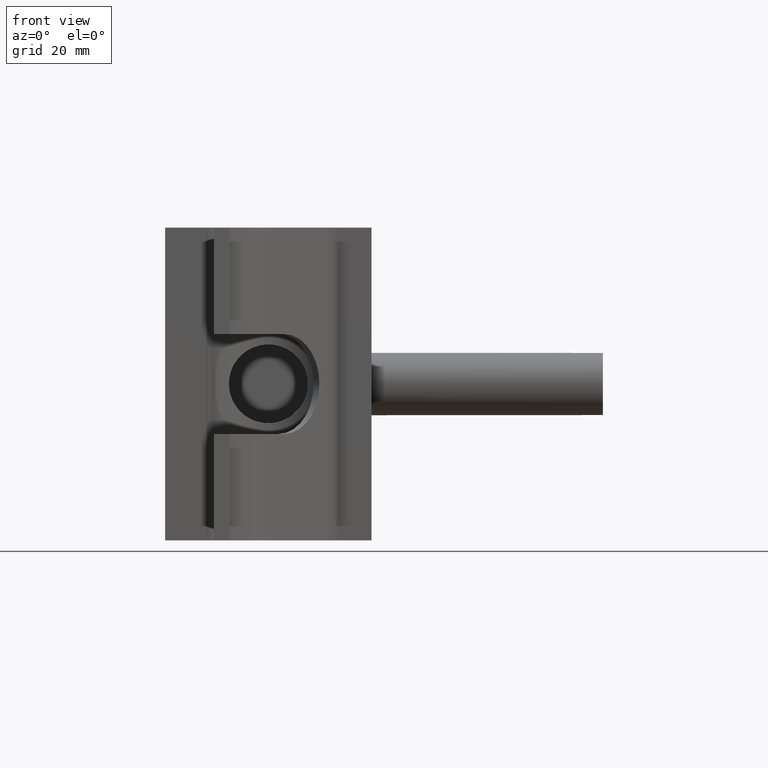
[diagram: clean part render]
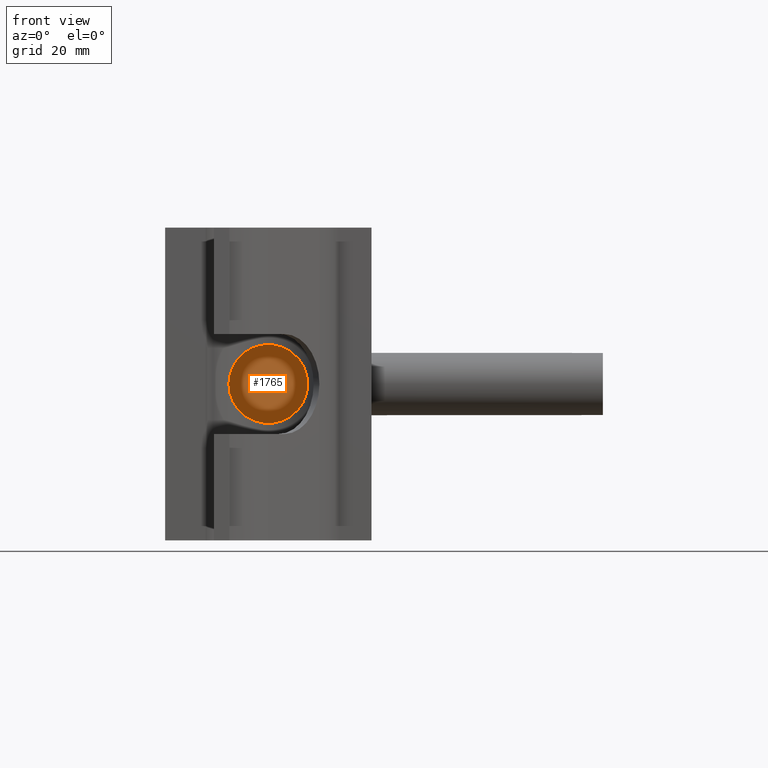
[diagram: same view with one face highlighted and labeled with its STEP entity id]
A machine part, front view. The second image highlights one B-rep face of the part: STEP entity #1765.
In plain terms, the highlighted planar face has unit normal (0, -1, -0).
Its self-contained STEP definition (entity closure, byte-faithful):
#411=FACE_OUTER_BOUND('',#522,.T.);
#522=EDGE_LOOP('',(#1175));
#656=CIRCLE('',#1880,12.6);
#737=VERTEX_POINT('',#2625);
#913=EDGE_CURVE('',#737,#737,#656,.T.);
#1175=ORIENTED_EDGE('',*,*,#913,.F.);
#1699=PLANE('',#1879);
#1765=ADVANCED_FACE('',(#411),#1699,.T.);
#1879=AXIS2_PLACEMENT_3D('',#2624,#2080,#2081);
#1880=AXIS2_PLACEMENT_3D('',#2626,#2082,#2083);
#2080=DIRECTION('center_axis',(0.,-1.,-3.06161699786838E-16));
#2081=DIRECTION('ref_axis',(0.,0.,-1.));
#2082=DIRECTION('center_axis',(0.,1.,3.06161699786838E-16));
#2083=DIRECTION('ref_axis',(1.,0.,0.));
#2624=CARTESIAN_POINT('Origin',(0.,90.5,12.6));
#2625=CARTESIAN_POINT('',(-12.6,90.5,2.31274548018978E-14));
#2626=CARTESIAN_POINT('Origin',(0.,90.5,2.15843998349721E-14));